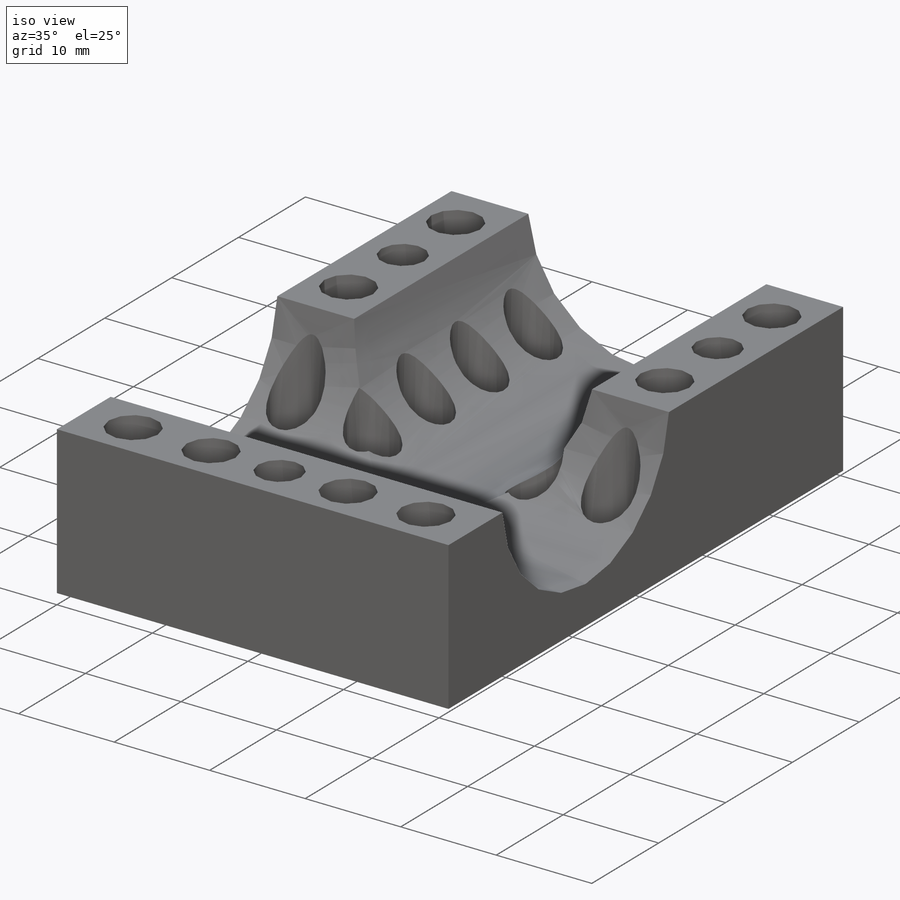
[diagram: iso view]
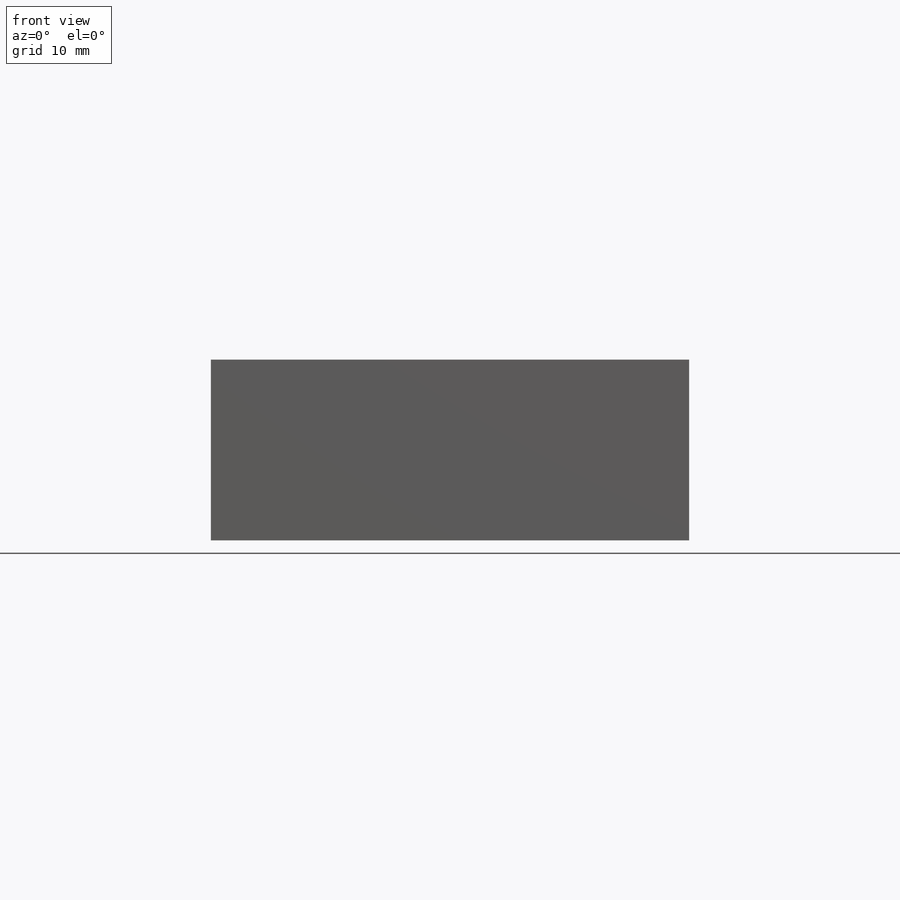
[diagram: front view]
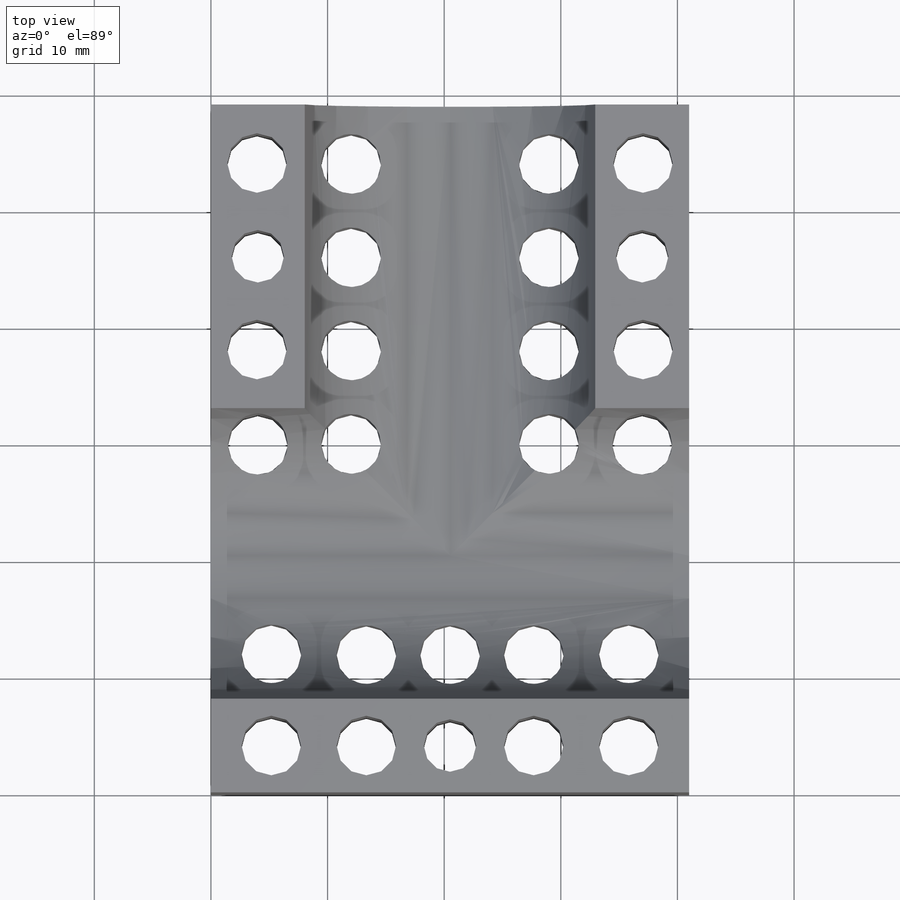
[diagram: top view]
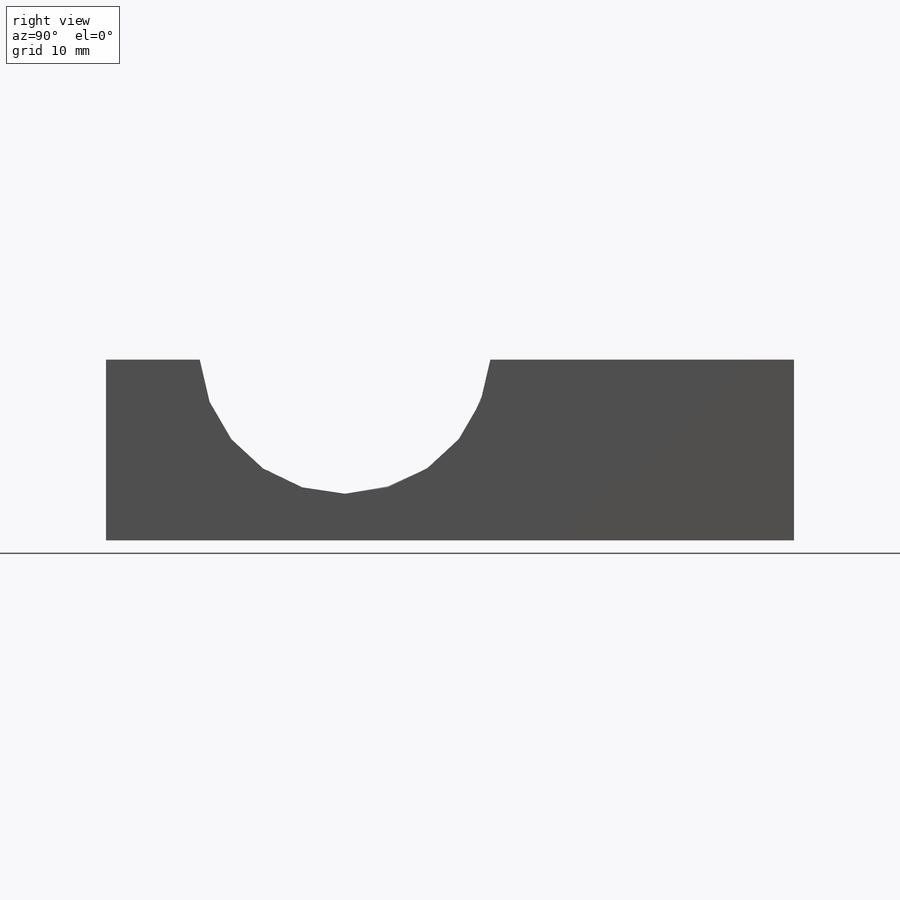
[diagram: right view]
SOLIDWORKS PART (.sldprt)
format: sldprt  version: not decoded by parser v0  size: 1,831,936 bytes
history: native  units: mm
features: thread x26, sketch x21, hole x6, cut_extrude x4, extrude x2, material x1, plane x1 (+11 scaffold rows collapsed)
feature tree (72):
  scaffold x11  (default folders/planes/origin — collapsed)
  material  "3.1355 (EN-AW 2024)"
  sketch  "Эскиз1"  dims[D1=8.0mm D2=25.0mm D3=8.0mm D4=8.0mm D5=25.0mm D6=8.0mm D7=10.0mm D8=8.0mm]
  extrude  "Бобышка-Вытянуть1"  Depth=15.5mm
  sketch  "Эскиз4"  dims[D1=12.6mm]
  cut_extrude  "Вырез-Вытянуть1"  [1 undecoded]
  sketch  "Эскиз5"  dims[D1=12.6mm]
  cut_extrude  "Вырез-Вытянуть2"  Depth=38.5mm
  sketch  "Эскиз7"  dims[D1=0.0mm]
  plane  "Плоскость1"
  sketch  "Эскиз6"  dims[D1=12.0mm]
  extrude  "Бобышка-Вытянуть2"  Depth=4mm
  sketch  "Эскиз14"  dims[D1=8.0mm D2=4.0]
  cut_extrude  "Вырез-Вытянуть3"  [1 undecoded]
  hole  "Цековка для винта с внутренним шестигранником M44"  [1 undecoded]
  sketch  "Эскиз19"
  sketch  "Эскиз15"  dims[hole-wizard template sketch: 42 standard entries collapsed; hole parameters kept: c12.Глубина сквозного отверстия=6.9mm c12.Диаметр цековки=8.0mm c12.Глубина цековки=4.0mm]
  sketch  "Эскиз20"
  hole  "Отверстие обработанное метчиком M4x0.71"  [1 undecoded]
  sketch  "Эскиз22"
  sketch  "Эскиз21"  dims[hole-wizard template sketch: 60 standard entries collapsed; hole parameters kept: c18.Глубина проходного сверла=19.5mm]
  thread  "Отверстие резьбы1"  Diameter=4mm  [1 undecoded]
  thread  "Отверстие резьбы2"  Diameter=4mm  [1 undecoded]
  thread  "Отверстие резьбы3"  Diameter=4mm  [1 undecoded]
  sketch  "Эскиз23"  dims[D2=6.35mm D4=6.35mm D1=18.5mm D3=2.0mm D5=2.0mm D6=1.8mm D7=8.0mm D8=8.0mm D9=8.0mm D10=8.0mm D11=8.0mm D12=8.0mm D13=8.0mm D14=8.0mm]
  hole  "Отверстие обработанное метчиком 1/4-201"  [1 undecoded]
  sketch  "Эскиз25"
  sketch  "Эскиз24"  dims[hole-wizard template sketch: 60 standard entries collapsed; hole parameters kept: c18.Глубина проходного сверла=19.5mm]
  thread  "Отверстие резьбы4"  Diameter=6.35mm  [1 undecoded]
  thread  "Отверстие резьбы5"  Diameter=6.35mm  [1 undecoded]
  thread  "Отверстие резьбы6"  Diameter=6.35mm  [1 undecoded]
  thread  "Отверстие резьбы7"  Diameter=6.35mm  [1 undecoded]
  thread  "Отверстие резьбы8"  Diameter=6.35mm  [1 undecoded]
  thread  "Отверстие резьбы9"  Diameter=6.35mm  [1 undecoded]
  thread  "Отверстие резьбы10"  Diameter=6.35mm  [1 undecoded]
  thread  "Отверстие резьбы11"  Diameter=6.35mm  [1 undecoded]
  hole  "Отверстие обработанное метчиком 1/4-202"  [1 undecoded]
  sketch  "Эскиз28"
  sketch  "Эскиз27"  dims[hole-wizard template sketch: 60 standard entries collapsed; hole parameters kept: c18.Глубина проходного сверла=19.5mm]
  thread  "Отверстие резьбы12"  Diameter=6.35mm  [1 undecoded]
  thread  "Отверстие резьбы13"  Diameter=6.35mm  [1 undecoded]
  thread  "Отверстие резьбы14"  Diameter=6.35mm  [1 undecoded]
  thread  "Отверстие резьбы15"  Diameter=6.35mm  [1 undecoded]
  hole  "Отверстие обработанное метчиком 1/4-203"  [1 undecoded]
  sketch  "Эскиз30"
  sketch  "Эскиз29"  dims[hole-wizard template sketch: 60 standard entries collapsed; hole parameters kept: c18.Глубина проходного сверла=19.5mm]
  thread  "Отверстие резьбы16"  Diameter=6.35mm  [1 undecoded]
  thread  "Отверстие резьбы17"  Diameter=6.35mm  [1 undecoded]
  thread  "Отверстие резьбы18"  Diameter=6.35mm  [1 undecoded]
  thread  "Отверстие резьбы19"  Diameter=6.35mm  [1 undecoded]
  thread  "Отверстие резьбы20"  Diameter=6.35mm  [1 undecoded]
  thread  "Отверстие резьбы21"  Diameter=6.35mm  [1 undecoded]
  thread  "Отверстие резьбы22"  Diameter=6.35mm  [1 undecoded]
  thread  "Отверстие резьбы23"  Diameter=6.35mm  [1 undecoded]
  sketch  "Эскиз31"  dims[D1=4.5mm D2=4.5mm D3=4.5mm]
  cut_extrude  "Вырез-Вытянуть4"  [1 undecoded]
  hole  "Отверстие обработанное метчиком 1/4-204"  [1 undecoded]
  sketch  "Эскиз33"
  sketch  "Эскиз32"  dims[hole-wizard template sketch: 60 standard entries collapsed; hole parameters kept: c18.Глубина проходного сверла=15.5mm]
  thread  "Отверстие резьбы24"  Diameter=6.35mm  [1 undecoded]
  thread  "Отверстие резьбы25"  Diameter=6.35mm  [1 undecoded]
  thread  "Отверстие резьбы26"  Diameter=6.35mm  [1 undecoded]
decode coverage: 43 of 59 modeling features carry decoded parameters
note: ~ marks probable driven/reference dimensions
note: 35 parameter values undecoded
summary: no parameter record found for 9 features
note: suppression state not decoded; provenance and decode notes live in map.json
